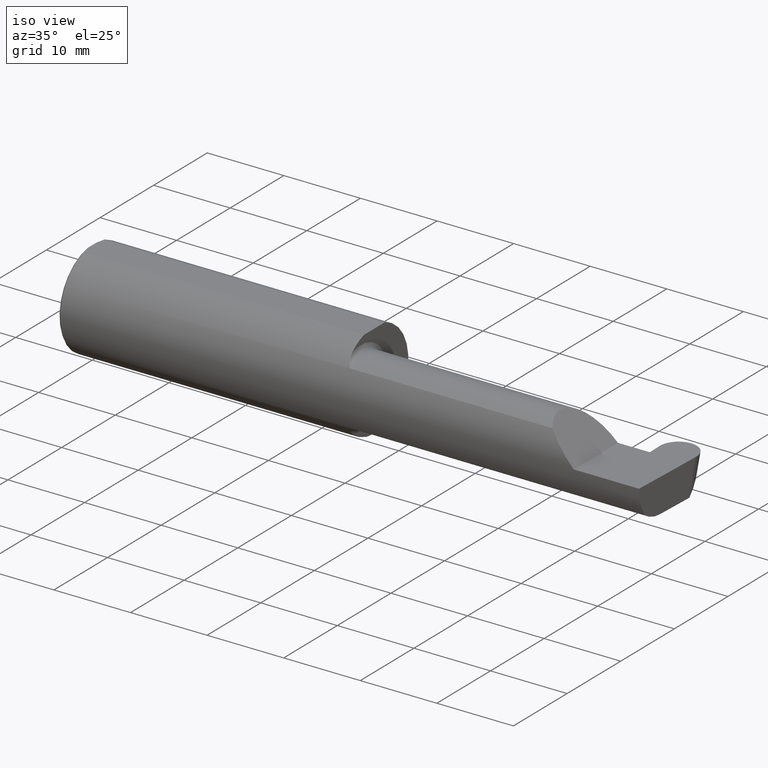
[diagram: clean part render]
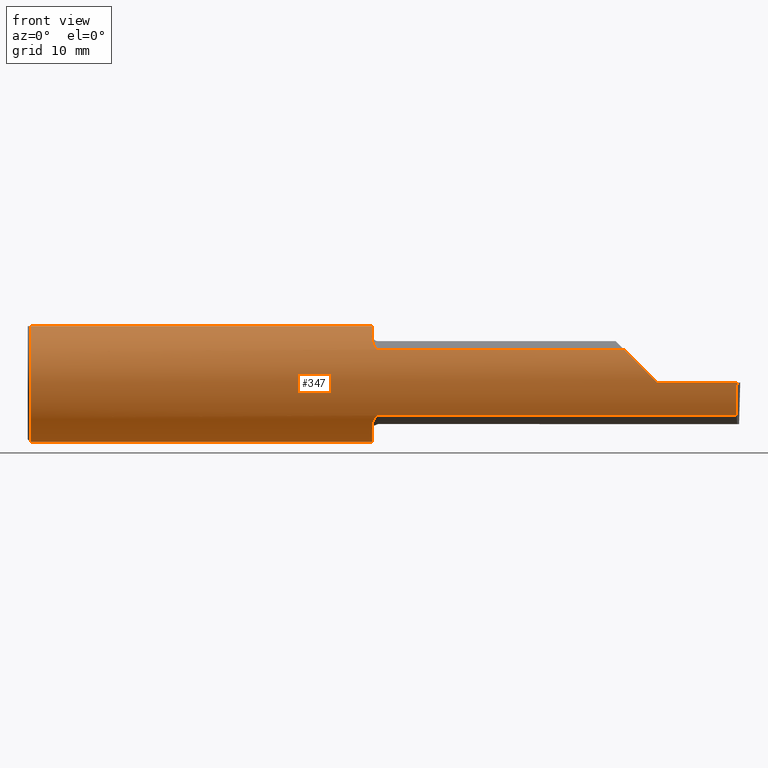
[diagram: tour spotlight — one face highlighted and labeled with its STEP entity id]
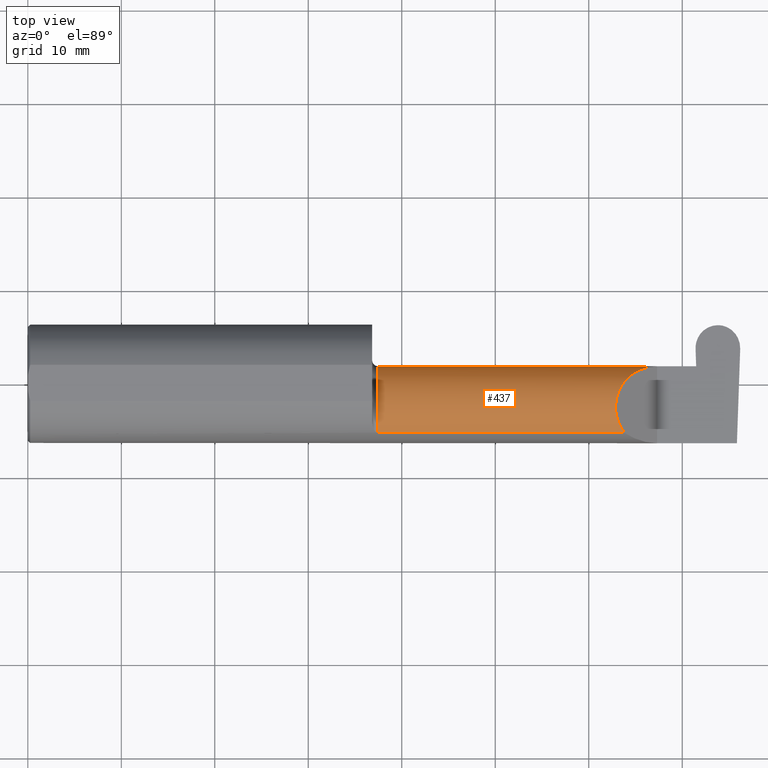
[diagram: tour spotlight — one face highlighted and labeled with its STEP entity id]
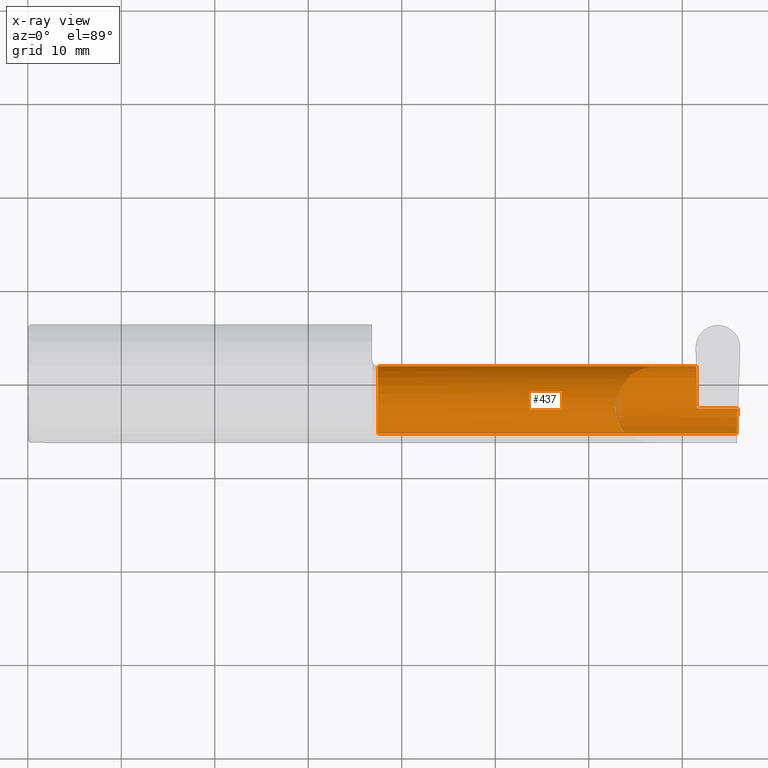
[diagram: x-ray of the same camera — body ghosted, this tour face saturated]
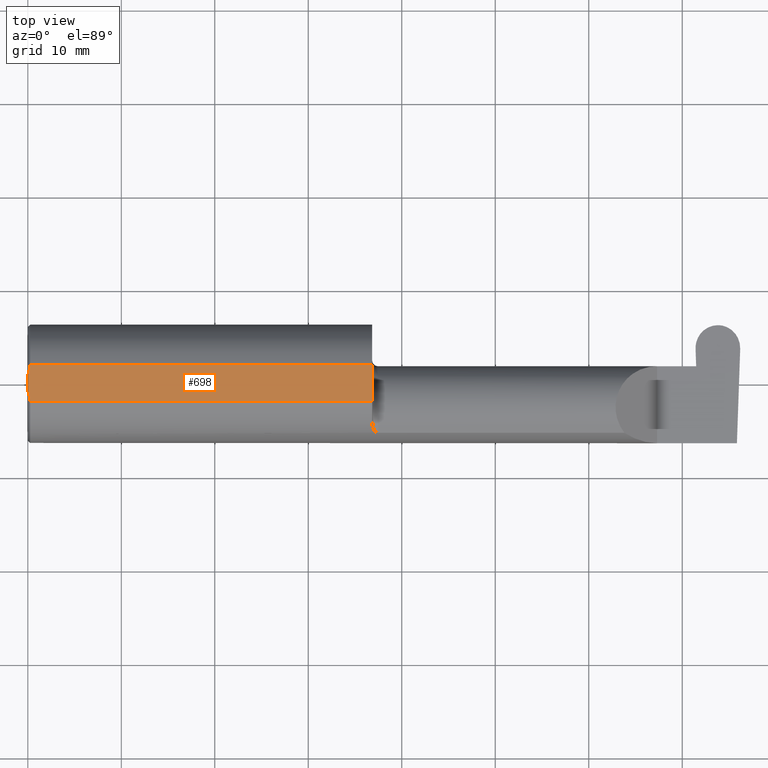
[diagram: tour spotlight — one face highlighted and labeled with its STEP entity id]
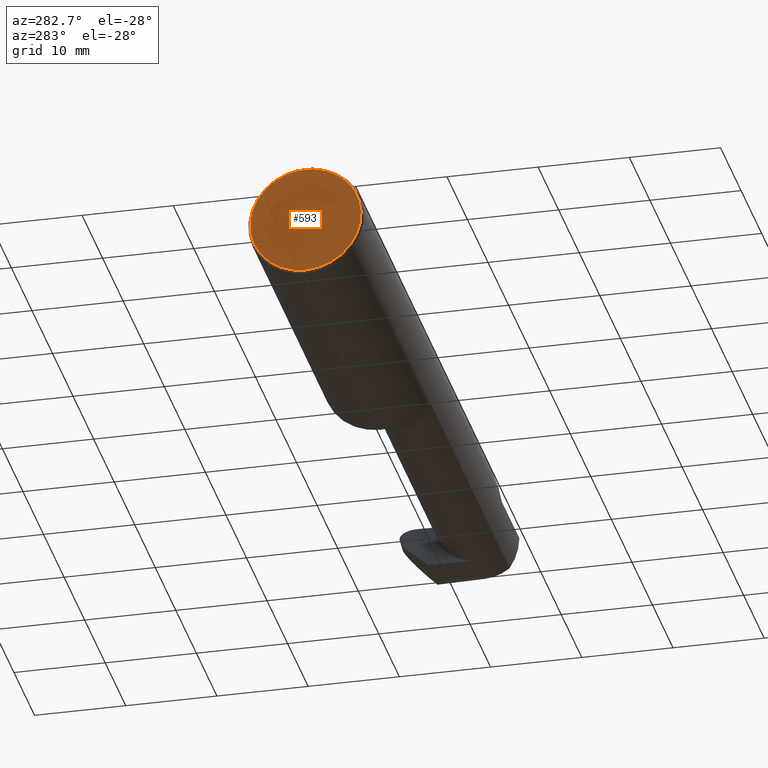
[diagram: tour spotlight — one face highlighted and labeled with its STEP entity id]
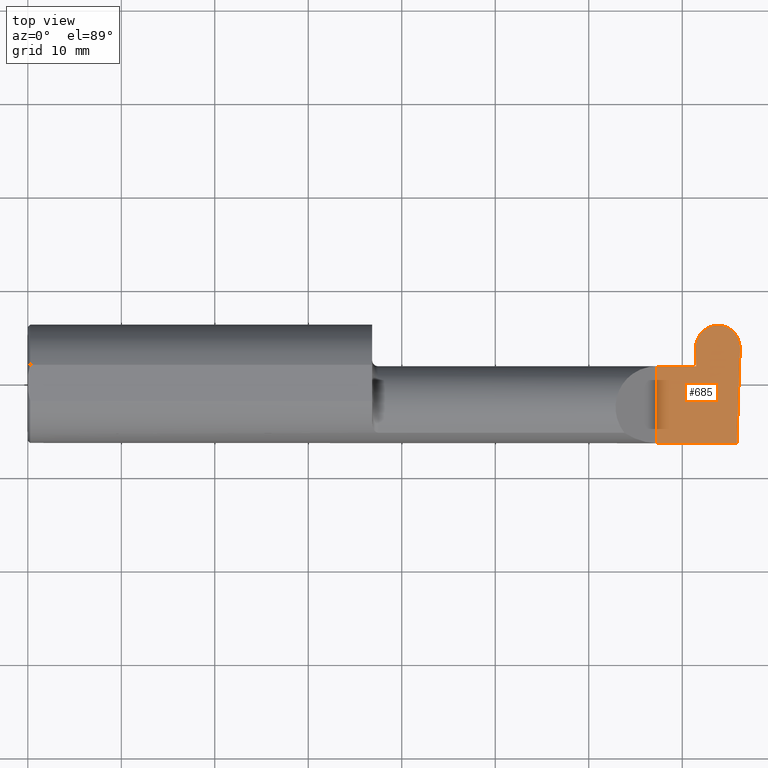
[diagram: tour spotlight — one face highlighted and labeled with its STEP entity id]
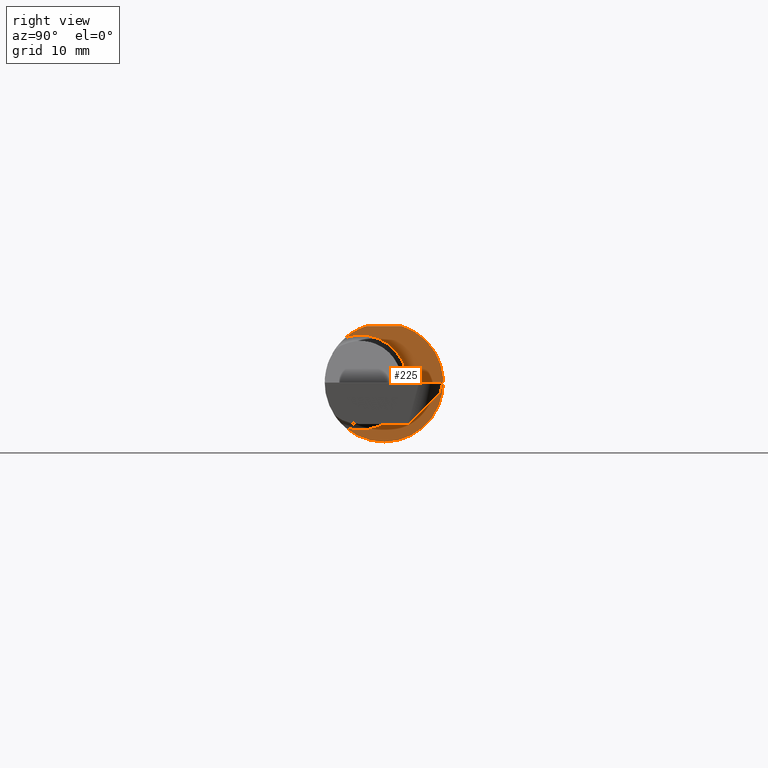
[diagram: tour spotlight — one face highlighted and labeled with its STEP entity id]
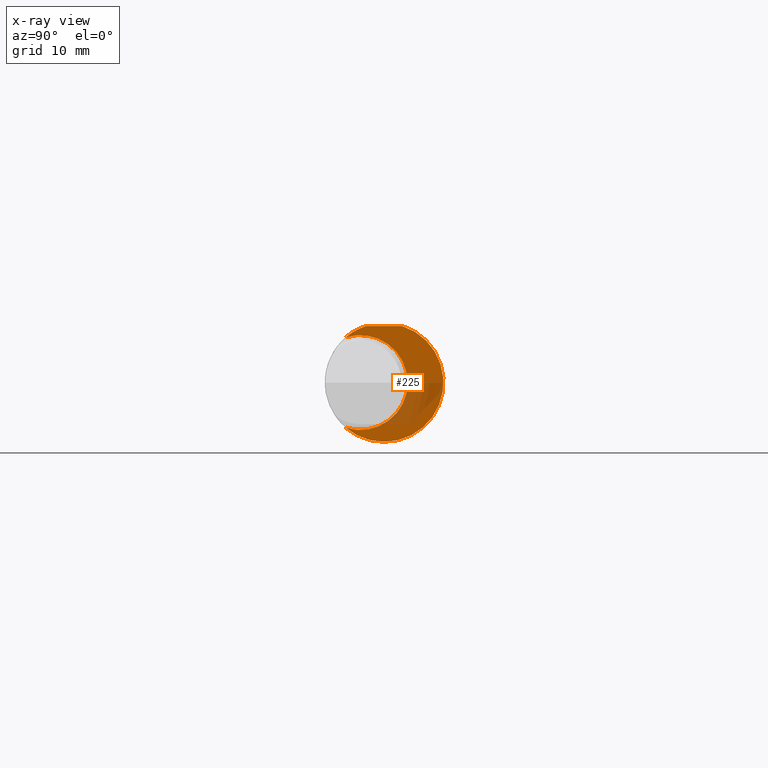
[diagram: x-ray of the same camera — body ghosted, this tour face saturated]
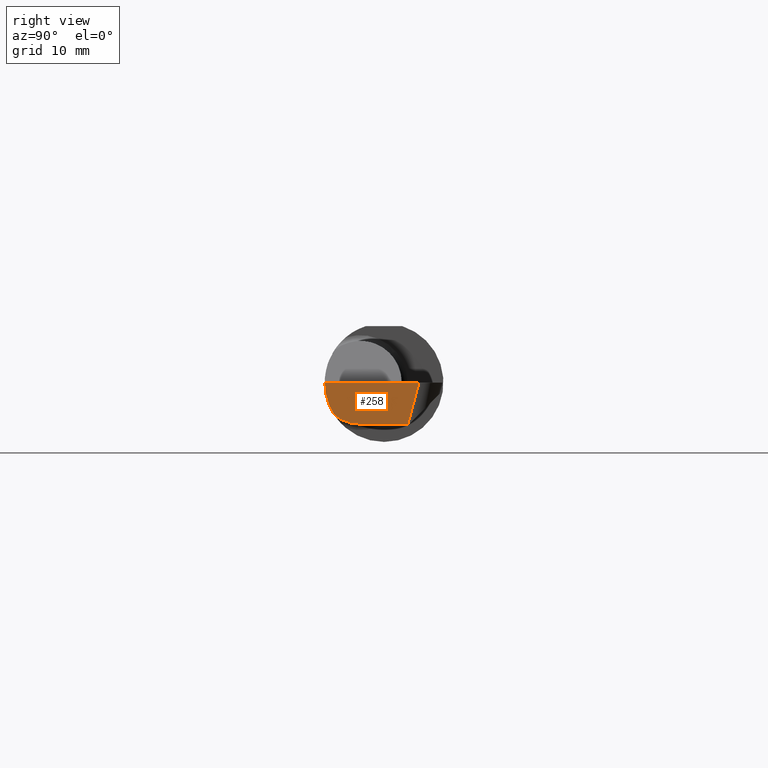
[diagram: tour spotlight — one face highlighted and labeled with its STEP entity id]
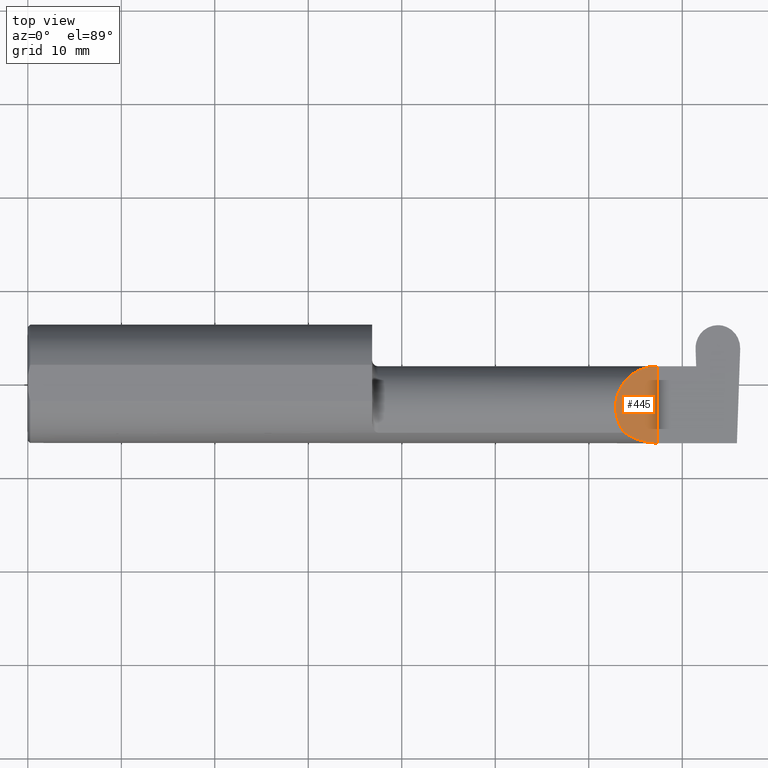
[diagram: tour spotlight — one face highlighted and labeled with its STEP entity id]
A machine part: a face-by-face anatomy tour. The part has 19 B-rep faces; the first image is the clean iso view, then the 8 largest visible faces are spotlighted one at a time (largest first), each with its STEP entity span.

Face 1 — front view, entity #347. In plain terms, the highlighted cylindrical surface (partial cylindrical patch) has radius 6.3462 mm, axis along (-1, -0, -0).
Definition (entity closure, byte-faithful):
#13 = EDGE_CURVE ( 'NONE', #337, #290, #396, .T. ) ;
#19 = CARTESIAN_POINT ( 'NONE',  ( 1.450000000000000622, -0.1665641037263009827, 0.1863429692936361681 ) ) ;
#20 = DIRECTION ( 'NONE',  ( 1.000000000000000000, 6.269458327436218646E-17, 0.000000000000000000 ) ) ;
#23 = LINE ( 'NONE', #561, #637 ) ;
#28 = LINE ( 'NONE', #400, #127 ) ;
#29 = ORIENTED_EDGE ( 'NONE', *, *, #581, .T. ) ;
#34 = CARTESIAN_POINT ( 'NONE',  ( 1.456147634408387903, -0.1932733126899460196, -0.1584637047788197695 ) ) ;
#40 = CARTESIAN_POINT ( 'NONE',  ( 1.451385488563270432, -0.1808287530430325862, -0.1728790649396287349 ) ) ;
#52 = CARTESIAN_POINT ( 'NONE',  ( 2.985032866776429650, -0.2080850024789288599, -0.1382955322609668858 ) ) ;
#55 = DIRECTION ( 'NONE',  ( 0.000000000000000000, 1.000000000000000000, 0.000000000000000000 ) ) ;
#67 = CARTESIAN_POINT ( 'NONE',  ( 2.985032866776429650, -0.2080850024789288599, -0.1382955322609668858 ) ) ;
#85 = CARTESIAN_POINT ( 'NONE',  ( 1.450000000000000400, -0.1716188362992555061, -0.1820560320165480750 ) ) ;
#104 = AXIS2_PLACEMENT_3D ( 'NONE', #710, #373, #604 ) ;
#108 = CARTESIAN_POINT ( 'NONE',  ( 2.985989829834099218, -0.2498499999999999888, 0.000000000000000000 ) ) ;
#110 = ORIENTED_EDGE ( 'NONE', *, *, #547, .T. ) ;
#124 = ORIENTED_EDGE ( 'NONE', *, *, #634, .T. ) ;
#127 = VECTOR ( 'NONE', #702, 39.37007874015748143 ) ;
#129 = VERTEX_POINT ( 'NONE', #420 ) ;
#131 = CARTESIAN_POINT ( 'NONE',  ( 0.000000000000000000, 0.000000000000000000, 0.000000000000000000 ) ) ;
#136 = CARTESIAN_POINT ( 'NONE',  ( 1.474999999999999867, -0.2080850024789288599, -0.1382955322609669135 ) ) ;
#141 = AXIS2_PLACEMENT_3D ( 'NONE', #131, #574, #393 ) ;
#147 = CARTESIAN_POINT ( 'NONE',  ( 1.464302603425052363, -0.2041009206016212441, -0.1441313430770041482 ) ) ;
#153 = DIRECTION ( 'NONE',  ( 1.000000000000000000, 6.269458327436218646E-17, 0.000000000000000000 ) ) ;
#166 = CARTESIAN_POINT ( 'NONE',  ( 1.450000000000000178, 0.000000000000000000, 0.000000000000000000 ) ) ;
#173 = CARTESIAN_POINT ( 'NONE',  ( 1.451849548162864600, -0.1805300287242672663, 0.1728462070311780341 ) ) ;
#174 = VECTOR ( 'NONE', #419, 39.37007874015748143 ) ;
#176 = DIRECTION ( 'NONE',  ( 0.000000000000000000, 1.000000000000000000, 0.000000000000000000 ) ) ;
#189 = CARTESIAN_POINT ( 'NONE',  ( 0.000000000000000000, -0.07650098038587520299, 0.2378499999999998671 ) ) ;
#190 = VERTEX_POINT ( 'NONE', #483 ) ;
#193 = CARTESIAN_POINT ( 'NONE',  ( 2.552984868485332015, -0.2355204011147991883, 0.09701513151466749363 ) ) ;
#200 = CARTESIAN_POINT ( 'NONE',  ( 2.650000000000000355, -0.2498499999999999610, 4.286263797015729199E-17 ) ) ;
#208 = CIRCLE ( 'NONE', #693, 0.2498499999999999888 ) ;
#209 = LINE ( 'NONE', #660, #174 ) ;
#211 = ORIENTED_EDGE ( 'NONE', *, *, #563, .F. ) ;
#212 = CARTESIAN_POINT ( 'NONE',  ( 1.450000000000000178, -0.07650098038587527238, 0.2378499999999998671 ) ) ;
#218 = AXIS2_PLACEMENT_3D ( 'NONE', #286, #20, #176 ) ;
#223 = CARTESIAN_POINT ( 'NONE',  ( 1.468876997637615256, -0.2068363917296600352, 0.1401586554522230577 ) ) ;
#226 = ORIENTED_EDGE ( 'NONE', *, *, #310, .F. ) ;
#230 = CARTESIAN_POINT ( 'NONE',  ( 1.458182335268384033, -0.1972192205116130859, 0.1535061413537210651 ) ) ;
#232 = ORIENTED_EDGE ( 'NONE', *, *, #572, .F. ) ;
#233 = B_SPLINE_CURVE_WITH_KNOTS ( 'NONE', 3,
 ( #671, #19, #277, #173, #288, #291, #230, #441, #616, #564, #223, #450, #509, #338 ),
 .UNSPECIFIED., .F., .F.,
 ( 4, 2, 2, 2, 2, 2, 4 ),
 ( 0.0003834465838148149201, 0.0008781406165086589211, 0.001372834649202502814, 0.001867528681896346923, 0.002114875698243273098, 0.002238549206416742907, 0.002362222714590213150 ),
 .UNSPECIFIED. ) ;
#239 = ORIENTED_EDGE ( 'NONE', *, *, #13, .T. ) ;
#242 = DIRECTION ( 'NONE',  ( 1.000000000000000000, 0.000000000000000000, 0.000000000000000000 ) ) ;
#255 = CARTESIAN_POINT ( 'NONE',  ( 1.467611663768900065, -0.2061921161193829566, -0.1411075319999378075 ) ) ;
#277 = CARTESIAN_POINT ( 'NONE',  ( 1.450367168219774294, -0.1713400252854603290, 0.1819601557798505576 ) ) ;
#286 = CARTESIAN_POINT ( 'NONE',  ( 1.450000000000000178, 0.000000000000000000, 0.000000000000000000 ) ) ;
#288 = CARTESIAN_POINT ( 'NONE',  ( 1.452968662030528879, -0.1849684355203377317, 0.1680843977756267815 ) ) ;
#290 = VERTEX_POINT ( 'NONE', #345 ) ;
#291 = CARTESIAN_POINT ( 'NONE',  ( 1.456159563508733878, -0.1933019864360848439, 0.1584298865564832681 ) ) ;
#298 = CARTESIAN_POINT ( 'NONE',  ( 1.458176740666625060, -0.1972027065478072771, -0.1535263573771913914 ) ) ;
#299 = CIRCLE ( 'NONE', #479, 0.2498499999999999888 ) ;
#301 = VERTEX_POINT ( 'NONE', #510 ) ;
#303 = CARTESIAN_POINT ( 'NONE',  ( 2.511704467739032332, -0.2080850024789289432, 0.1382955322609668858 ) ) ;
#309 = CARTESIAN_POINT ( 'NONE',  ( 2.143342309999999973, -0.2080850024789289432, 0.1382955322609668858 ) ) ;
#310 = EDGE_CURVE ( 'NONE', #129, #321, #370, .T. ) ;
#319 = ORIENTED_EDGE ( 'NONE', *, *, #402, .F. ) ;
#321 = VERTEX_POINT ( 'NONE', #569 ) ;
#325 =( BOUNDED_CURVE ( )  B_SPLINE_CURVE ( 3, ( #52, #368, #413, #108 ),
 .UNSPECIFIED., .F., .F. ) 
 B_SPLINE_CURVE_WITH_KNOTS ( ( 4, 4 ),
 ( 6.160376845738953833, 6.746954780470612256 ),
 .UNSPECIFIED. ) 
 CURVE ( )  GEOMETRIC_REPRESENTATION_ITEM ( )  RATIONAL_B_SPLINE_CURVE ( ( 1.000000000000000000, 0.9715321379117538569, 0.9715321379117538569, 1.000000000000000000 ) ) 
 REPRESENTATION_ITEM ( '' )  );
#326 = VERTEX_POINT ( 'NONE', #67 ) ;
#331 = VECTOR ( 'NONE', #697, 39.37007874015748143 ) ;
#337 = VERTEX_POINT ( 'NONE', #447 ) ;
#338 = CARTESIAN_POINT ( 'NONE',  ( 1.474999999999999867, -0.2080850024789289432, 0.1382955322609669135 ) ) ;
#343 = ORIENTED_EDGE ( 'NONE', *, *, #700, .F. ) ;
#345 = CARTESIAN_POINT ( 'NONE',  ( 2.511704467739032332, -0.2080850024789289432, 0.1382955322609668858 ) ) ;
#347 = ADVANCED_FACE ( 'NONE', ( #629 ), #382, .T. ) ;
#362 = CARTESIAN_POINT ( 'NONE',  ( 1.474999999999999867, -0.2080850024789289432, 0.1382955322609669135 ) ) ;
#368 = CARTESIAN_POINT ( 'NONE',  ( 2.984795792828450089, -0.2355204011147991883, -0.09701513151466764628 ) ) ;
#370 = CIRCLE ( 'NONE', #218, 0.2498499999999999888 ) ;
#373 = DIRECTION ( 'NONE',  ( 1.000000000000000000, 0.000000000000000000, 0.000000000000000000 ) ) ;
#382 = CYLINDRICAL_SURFACE ( 'NONE', #141, 0.2498499999999999888 ) ;
#391 = B_SPLINE_CURVE_WITH_KNOTS ( 'NONE', 3,
 ( #136, #587, #403, #459, #255, #147, #462, #298, #34, #40, #85, #635 ),
 .UNSPECIFIED., .F., .F.,
 ( 4, 2, 2, 2, 2, 4 ),
 ( 1.964491429042083594E-07, 0.0001260981470478302361, 0.0002519998449527562925, 0.0005038032407626203855, 0.001007410032382348572, 0.002014623615621810148 ),
 .UNSPECIFIED. ) ;
#393 = DIRECTION ( 'NONE',  ( 0.000000000000000000, 0.000000000000000000, 1.000000000000000000 ) ) ;
#394 = VERTEX_POINT ( 'NONE', #622 ) ;
#396 =( BOUNDED_CURVE ( )  B_SPLINE_CURVE ( 3, ( #200, #474, #193, #303 ),
 .UNSPECIFIED., .F., .F. ) 
 B_SPLINE_CURVE_WITH_KNOTS ( ( 4, 4 ),
 ( 4.712388980384689674, 5.298966915116347209 ),
 .UNSPECIFIED. ) 
 CURVE ( )  GEOMETRIC_REPRESENTATION_ITEM ( )  RATIONAL_B_SPLINE_CURVE ( ( 1.000000000000000000, 0.9715321379117538569, 0.9715321379117538569, 1.000000000000000000 ) ) 
 REPRESENTATION_ITEM ( '' )  );
#400 = CARTESIAN_POINT ( 'NONE',  ( 4.499279347985562423E-32, -0.2498499999999999610, 3.673940397442054938E-16 ) ) ;
#402 = EDGE_CURVE ( 'NONE', #321, #190, #23, .T. ) ;
#403 = CARTESIAN_POINT ( 'NONE',  ( 1.471700027347579320, -0.2077785947292767055, -0.1387580622202826686 ) ) ;
#405 = CIRCLE ( 'NONE', #104, 0.2498499999999999888 ) ;
#413 = CARTESIAN_POINT ( 'NONE',  ( 2.985124127500504265, -0.2498499999999999610, -0.04956584089959700790 ) ) ;
#419 = DIRECTION ( 'NONE',  ( -1.000000000000000000, -6.269458327436218646E-17, -0.000000000000000000 ) ) ;
#420 = CARTESIAN_POINT ( 'NONE',  ( 1.450000000000000178, -0.1616050818046604332, -0.1905487340154980169 ) ) ;
#421 = EDGE_LOOP ( 'NONE', ( #585, #29, #543, #239, #211, #343, #232, #487, #124, #110, #319, #226, #624 ) ) ;
#428 = DIRECTION ( 'NONE',  ( 1.000000000000000000, 6.269458327436218646E-17, 0.000000000000000000 ) ) ;
#441 = CARTESIAN_POINT ( 'NONE',  ( 1.462616400345755574, -0.2024684335577102701, 0.1464246884265638926 ) ) ;
#447 = CARTESIAN_POINT ( 'NONE',  ( 2.650000000000000355, -0.2498499999999999610, 4.286263797015729199E-17 ) ) ;
#450 = CARTESIAN_POINT ( 'NONE',  ( 1.471718393013768278, -0.2077830475237240626, 0.1387513848711937336 ) ) ;
#459 = CARTESIAN_POINT ( 'NONE',  ( 1.468863362722770294, -0.2068301641248768419, -0.1401678546132361369 ) ) ;
#461 = EDGE_CURVE ( 'NONE', #679, #129, #391, .T. ) ;
#462 = CARTESIAN_POINT ( 'NONE',  ( 1.462579853086618975, -0.2024300470081734915, -0.1464774911482685238 ) ) ;
#474 = CARTESIAN_POINT ( 'NONE',  ( 2.600434159100402987, -0.2498499999999999610, 0.04956584089959698708 ) ) ;
#479 = AXIS2_PLACEMENT_3D ( 'NONE', #513, #242, #683 ) ;
#483 = CARTESIAN_POINT ( 'NONE',  ( 0.009999999999999856226, 0.07650098038587520299, 0.2378499999999998671 ) ) ;
#487 = ORIENTED_EDGE ( 'NONE', *, *, #538, .F. ) ;
#509 = CARTESIAN_POINT ( 'NONE',  ( 1.473329956043141875, -0.2080850024798588660, 0.1382955322595675884 ) ) ;
#510 = CARTESIAN_POINT ( 'NONE',  ( 0.009999999999999856226, 0.000000000000000000, -0.2498499999999999888 ) ) ;
#513 = CARTESIAN_POINT ( 'NONE',  ( 0.009999999999999856226, 0.000000000000000000, 0.000000000000000000 ) ) ;
#529 = LINE ( 'NONE', #189, #331 ) ;
#537 = VERTEX_POINT ( 'NONE', #584 ) ;
#538 = EDGE_CURVE ( 'NONE', #394, #687, #529, .T. ) ;
#543 = ORIENTED_EDGE ( 'NONE', *, *, #549, .T. ) ;
#544 = LINE ( 'NONE', #309, #706 ) ;
#547 = EDGE_CURVE ( 'NONE', #301, #190, #299, .T. ) ;
#549 = EDGE_CURVE ( 'NONE', #665, #337, #28, .T. ) ;
#561 = CARTESIAN_POINT ( 'NONE',  ( 0.000000000000000000, 0.07650098038587520299, 0.2378499999999998671 ) ) ;
#563 = EDGE_CURVE ( 'NONE', #662, #290, #544, .T. ) ;
#564 = CARTESIAN_POINT ( 'NONE',  ( 1.467647060162628359, -0.2062109266231180460, 0.1410799729252291967 ) ) ;
#565 = DIRECTION ( 'NONE',  ( -1.000000000000000000, -0.000000000000000000, -0.000000000000000000 ) ) ;
#569 = CARTESIAN_POINT ( 'NONE',  ( 1.450000000000000178, 0.07650098038587520299, 0.2378499999999998671 ) ) ;
#571 = EDGE_CURVE ( 'NONE', #326, #679, #209, .T. ) ;
#572 = EDGE_CURVE ( 'NONE', #687, #537, #208, .T. ) ;
#574 = DIRECTION ( 'NONE',  ( -1.000000000000000000, -0.000000000000000000, -0.000000000000000000 ) ) ;
#581 = EDGE_CURVE ( 'NONE', #326, #665, #325, .T. ) ;
#584 = CARTESIAN_POINT ( 'NONE',  ( 1.450000000000000178, -0.1616050818046604332, 0.1905487340154980169 ) ) ;
#585 = ORIENTED_EDGE ( 'NONE', *, *, #571, .F. ) ;
#587 = CARTESIAN_POINT ( 'NONE',  ( 1.473318040126429640, -0.2080850024789288877, -0.1382955322609669135 ) ) ;
#594 = CARTESIAN_POINT ( 'NONE',  ( 2.985989829834099218, -0.2498499999999999888, 0.000000000000000000 ) ) ;
#604 = DIRECTION ( 'NONE',  ( 0.000000000000000000, 0.000000000000000000, -1.000000000000000000 ) ) ;
#616 = CARTESIAN_POINT ( 'NONE',  ( 1.464343523383978996, -0.2041337200786082218, 0.1440846171672513221 ) ) ;
#622 = CARTESIAN_POINT ( 'NONE',  ( 0.009999999999999856226, -0.07650098038587520299, 0.2378499999999998671 ) ) ;
#624 = ORIENTED_EDGE ( 'NONE', *, *, #461, .F. ) ;
#629 = FACE_OUTER_BOUND ( 'NONE', #421, .T. ) ;
#634 = EDGE_CURVE ( 'NONE', #394, #301, #405, .T. ) ;
#635 = CARTESIAN_POINT ( 'NONE',  ( 1.450000000000000178, -0.1616050818046604332, -0.1905487340154980169 ) ) ;
#637 = VECTOR ( 'NONE', #565, 39.37007874015748143 ) ;
#651 = CARTESIAN_POINT ( 'NONE',  ( 1.474999999999999867, -0.2080850024789288599, -0.1382955322609669135 ) ) ;
#660 = CARTESIAN_POINT ( 'NONE',  ( 2.143342309999999973, -0.2080850024789289432, -0.1382955322609668858 ) ) ;
#662 = VERTEX_POINT ( 'NONE', #362 ) ;
#665 = VERTEX_POINT ( 'NONE', #594 ) ;
#671 = CARTESIAN_POINT ( 'NONE',  ( 1.450000000000000178, -0.1616050818046604332, 0.1905487340154980169 ) ) ;
#679 = VERTEX_POINT ( 'NONE', #651 ) ;
#683 = DIRECTION ( 'NONE',  ( 0.000000000000000000, 0.000000000000000000, -1.000000000000000000 ) ) ;
#687 = VERTEX_POINT ( 'NONE', #212 ) ;
#693 = AXIS2_PLACEMENT_3D ( 'NONE', #166, #428, #55 ) ;
#697 = DIRECTION ( 'NONE',  ( 1.000000000000000000, 0.000000000000000000, 0.000000000000000000 ) ) ;
#700 = EDGE_CURVE ( 'NONE', #537, #662, #233, .T. ) ;
#702 = DIRECTION ( 'NONE',  ( -1.000000000000000000, -0.000000000000000000, -0.000000000000000000 ) ) ;
#706 = VECTOR ( 'NONE', #153, 39.37007874015748143 ) ;
#710 = CARTESIAN_POINT ( 'NONE',  ( 0.009999999999999856226, 0.000000000000000000, 0.000000000000000000 ) ) ;

Face 2 — top view, entity #437. An x-ray twin of the same camera follows (body ghosted, this face saturated) — the face is partly hidden behind the body. In plain terms, the highlighted cylindrical surface (partial cylindrical patch) has radius 4.445 mm, axis along (-1, -0, -0).
Definition (entity closure, byte-faithful):
#3 = ORIENTED_EDGE ( 'NONE', *, *, #58, .F. ) ;
#7 = VECTOR ( 'NONE', #619, 39.37007874015748143 ) ;
#17 = CARTESIAN_POINT ( 'NONE',  ( 2.988136526189751230, -0.1008499999999999674, -0.1750000000000000722 ) ) ;
#27 = VERTEX_POINT ( 'NONE', #83 ) ;
#32 = CARTESIAN_POINT ( 'NONE',  ( 2.803303632637951459, 0.07411446490944693932, -0.002035803974317284496 ) ) ;
#38 = AXIS2_PLACEMENT_3D ( 'NONE', #246, #699, #639 ) ;
#44 = CARTESIAN_POINT ( 'NONE',  ( 2.482823929317965028, 0.07414999999999997982, 0.1671760706820338838 ) ) ;
#58 = EDGE_CURVE ( 'NONE', #27, #86, #701, .T. ) ;
#67 = CARTESIAN_POINT ( 'NONE',  ( 2.985032866776429650, -0.2080850024789288599, -0.1382955322609668858 ) ) ;
#68 = EDGE_CURVE ( 'NONE', #618, #217, #168, .T. ) ;
#71 = CARTESIAN_POINT ( 'NONE',  ( 2.986768025497131163, -0.1400387324517230192, -0.1750000000000001277 ) ) ;
#75 = CARTESIAN_POINT ( 'NONE',  ( 2.985694921565462234, -0.1771157075472507281, -0.1623092683844332973 ) ) ;
#78 = EDGE_CURVE ( 'NONE', #662, #679, #103, .T. ) ;
#79 = CARTESIAN_POINT ( 'NONE',  ( 2.650000000000000355, 0.07414999999999999369, 1.898202538678394994E-16 ) ) ;
#83 = CARTESIAN_POINT ( 'NONE',  ( 2.817597862438286249, -0.1008500000000000368, -0.1750000000000000444 ) ) ;
#86 = VERTEX_POINT ( 'NONE', #90 ) ;
#90 = CARTESIAN_POINT ( 'NONE',  ( 2.814490853840988738, 0.07404339472834124691, -0.006107411922953761250 ) ) ;
#94 = DIRECTION ( 'NONE',  ( -1.000000000000000000, -6.269458327436218646E-17, -0.000000000000000000 ) ) ;
#103 = CIRCLE ( 'NONE', #38, 0.1750000000000000167 ) ;
#105 = CARTESIAN_POINT ( 'NONE',  ( 2.803232562456845933, 0.07404339472834127467, -0.006107411922951849585 ) ) ;
#123 = CARTESIAN_POINT ( 'NONE',  ( 2.985032866776429650, -0.2080850024789288599, -0.1382955322609668858 ) ) ;
#153 = DIRECTION ( 'NONE',  ( 1.000000000000000000, 6.269458327436218646E-17, 0.000000000000000000 ) ) ;
#157 = ORIENTED_EDGE ( 'NONE', *, *, #571, .T. ) ;
#165 = ORIENTED_EDGE ( 'NONE', *, *, #78, .F. ) ;
#168 = B_SPLINE_CURVE_WITH_KNOTS ( 'NONE', 3,
 ( #406, #644, #32, #353 ),
 .UNSPECIFIED., .F., .F.,
 ( 4, 4 ),
 ( 0.000000000000000000, 1.000000000000000000 ),
 .UNSPECIFIED. ) ;
#174 = VECTOR ( 'NONE', #419, 39.37007874015748143 ) ;
#177 = EDGE_CURVE ( 'NONE', #86, #618, #708, .T. ) ;
#199 = FACE_OUTER_BOUND ( 'NONE', #508, .T. ) ;
#209 = LINE ( 'NONE', #660, #174 ) ;
#217 = VERTEX_POINT ( 'NONE', #661 ) ;
#246 = CARTESIAN_POINT ( 'NONE',  ( 1.474999999999999867, -0.1008500000000001062, 0.000000000000000000 ) ) ;
#260 = CARTESIAN_POINT ( 'NONE',  ( 2.511704467739032332, -0.2080850024789289432, 0.1382955322609668858 ) ) ;
#279 =( BOUNDED_CURVE ( )  B_SPLINE_CURVE ( 3, ( #123, #75, #71, #296 ),
 .UNSPECIFIED., .F., .F. ) 
 B_SPLINE_CURVE_WITH_KNOTS ( ( 4, 4 ),
 ( 0.4474640105399675938, 1.107026853503871866 ),
 .UNSPECIFIED. ) 
 CURVE ( )  GEOMETRIC_REPRESENTATION_ITEM ( )  RATIONAL_B_SPLINE_CURVE ( ( 1.000000000000000000, 0.9640754331822832812, 0.9640754331822832812, 1.000000000000000000 ) ) 
 REPRESENTATION_ITEM ( '' )  );
#287 = ORIENTED_EDGE ( 'NONE', *, *, #563, .T. ) ;
#289 = LINE ( 'NONE', #451, #504 ) ;
#290 = VERTEX_POINT ( 'NONE', #345 ) ;
#296 = CARTESIAN_POINT ( 'NONE',  ( 2.988136526189751230, -0.1008499999999999674, -0.1750000000000000722 ) ) ;
#309 = CARTESIAN_POINT ( 'NONE',  ( 2.143342309999999973, -0.2080850024789289432, 0.1382955322609668858 ) ) ;
#326 = VERTEX_POINT ( 'NONE', #67 ) ;
#345 = CARTESIAN_POINT ( 'NONE',  ( 2.511704467739032332, -0.2080850024789289432, 0.1382955322609668858 ) ) ;
#353 = CARTESIAN_POINT ( 'NONE',  ( 2.803339167728504666, 0.07414999999999977165, 0.000000000000000000 ) ) ;
#362 = CARTESIAN_POINT ( 'NONE',  ( 1.474999999999999867, -0.2080850024789289432, 0.1382955322609669135 ) ) ;
#379 = EDGE_CURVE ( 'NONE', #326, #387, #279, .T. ) ;
#383 = ORIENTED_EDGE ( 'NONE', *, *, #177, .F. ) ;
#387 = VERTEX_POINT ( 'NONE', #17 ) ;
#401 = ORIENTED_EDGE ( 'NONE', *, *, #410, .T. ) ;
#404 = CARTESIAN_POINT ( 'NONE',  ( 1.450000000000000178, -0.1008500000000001062, 0.000000000000000000 ) ) ;
#406 = CARTESIAN_POINT ( 'NONE',  ( 2.803232562456845933, 0.07404339472834127467, -0.006107411922951849585 ) ) ;
#410 = EDGE_CURVE ( 'NONE', #455, #217, #289, .T. ) ;
#419 = DIRECTION ( 'NONE',  ( -1.000000000000000000, -6.269458327436218646E-17, -0.000000000000000000 ) ) ;
#437 = ADVANCED_FACE ( 'NONE', ( #199 ), #643, .T. ) ;
#451 = CARTESIAN_POINT ( 'NONE',  ( 1.450000000000000178, 0.07414999999999991043, 1.898202538678394994E-16 ) ) ;
#455 = VERTEX_POINT ( 'NONE', #79 ) ;
#473 =( BOUNDED_CURVE ( )  B_SPLINE_CURVE ( 3, ( #260, #534, #44, #477 ),
 .UNSPECIFIED., .F., .F. ) 
 B_SPLINE_CURVE_WITH_KNOTS ( ( 4, 4 ),
 ( 5.623622464215681127, 7.853981633974482790 ),
 .UNSPECIFIED. ) 
 CURVE ( )  GEOMETRIC_REPRESENTATION_ITEM ( )  RATIONAL_B_SPLINE_CURVE ( ( 1.000000000000000000, 0.6266774836123996106, 0.6266774836123996106, 1.000000000000000000 ) ) 
 REPRESENTATION_ITEM ( '' )  );
#477 = CARTESIAN_POINT ( 'NONE',  ( 2.650000000000000355, 0.07414999999999999369, 1.898202538678394994E-16 ) ) ;
#478 = CARTESIAN_POINT ( 'NONE',  ( 1.450000000000000178, 0.07404339472834139957, -0.006107411922946026986 ) ) ;
#501 = CARTESIAN_POINT ( 'NONE',  ( 3.402190948718818664, -0.1008499999999999674, -0.1750000000000000722 ) ) ;
#504 = VECTOR ( 'NONE', #674, 39.37007874015748143 ) ;
#508 = EDGE_LOOP ( 'NONE', ( #157, #165, #287, #511, #401, #525, #383, #3, #603, #607 ) ) ;
#511 = ORIENTED_EDGE ( 'NONE', *, *, #666, .T. ) ;
#518 = CARTESIAN_POINT ( 'NONE',  ( 2.816292363343102068, 0.07056399972053259417, -0.1057442486376092700 ) ) ;
#525 = ORIENTED_EDGE ( 'NONE', *, *, #68, .F. ) ;
#534 = CARTESIAN_POINT ( 'NONE',  ( 2.409263745716142768, -0.07597241004310682777, 0.2407362542838554220 ) ) ;
#544 = LINE ( 'NONE', #309, #706 ) ;
#563 = EDGE_CURVE ( 'NONE', #662, #290, #544, .T. ) ;
#568 = LINE ( 'NONE', #501, #7 ) ;
#571 = EDGE_CURVE ( 'NONE', #326, #679, #209, .T. ) ;
#582 = CARTESIAN_POINT ( 'NONE',  ( 2.817597862438286249, -0.1008500000000000368, -0.1750000000000000444 ) ) ;
#588 = CARTESIAN_POINT ( 'NONE',  ( 2.814490853840988738, 0.07404339472834124691, -0.006107411922953761250 ) ) ;
#597 = DIRECTION ( 'NONE',  ( -1.000000000000000000, -6.269458327436218646E-17, -0.000000000000000000 ) ) ;
#603 = ORIENTED_EDGE ( 'NONE', *, *, #689, .F. ) ;
#607 = ORIENTED_EDGE ( 'NONE', *, *, #379, .F. ) ;
#613 = VECTOR ( 'NONE', #597, 39.37007874015748143 ) ;
#618 = VERTEX_POINT ( 'NONE', #105 ) ;
#619 = DIRECTION ( 'NONE',  ( -1.000000000000000000, -0.000000000000000000, -0.000000000000000000 ) ) ;
#639 = DIRECTION ( 'NONE',  ( 0.000000000000000000, -1.000000000000000000, 0.000000000000000000 ) ) ;
#641 = DIRECTION ( 'NONE',  ( 0.000000000000000000, -1.000000000000000000, 0.000000000000000000 ) ) ;
#643 = CYLINDRICAL_SURFACE ( 'NONE', #669, 0.1750000000000000444 ) ;
#644 = CARTESIAN_POINT ( 'NONE',  ( 2.803268097547399140, 0.07407892981889410700, -0.004071607948634568992 ) ) ;
#651 = CARTESIAN_POINT ( 'NONE',  ( 1.474999999999999867, -0.2080850024789288599, -0.1382955322609669135 ) ) ;
#660 = CARTESIAN_POINT ( 'NONE',  ( 2.143342309999999973, -0.2080850024789289432, -0.1382955322609668858 ) ) ;
#661 = CARTESIAN_POINT ( 'NONE',  ( 2.803339167728504666, 0.07414999999999977165, 0.000000000000000000 ) ) ;
#662 = VERTEX_POINT ( 'NONE', #362 ) ;
#666 = EDGE_CURVE ( 'NONE', #290, #455, #473, .T. ) ;
#669 = AXIS2_PLACEMENT_3D ( 'NONE', #404, #94, #641 ) ;
#674 = DIRECTION ( 'NONE',  ( 1.000000000000000000, 6.269458327436218646E-17, 0.000000000000000000 ) ) ;
#679 = VERTEX_POINT ( 'NONE', #651 ) ;
#689 = EDGE_CURVE ( 'NONE', #387, #27, #568, .T. ) ;
#691 = CARTESIAN_POINT ( 'NONE',  ( 2.817566416972957732, -0.001152430219572305077, -0.1750000000000000722 ) ) ;
#699 = DIRECTION ( 'NONE',  ( -1.000000000000000000, -6.269458327436218646E-17, -0.000000000000000000 ) ) ;
#701 =( BOUNDED_CURVE ( )  B_SPLINE_CURVE ( 3, ( #582, #691, #518, #588 ),
 .UNSPECIFIED., .F., .F. ) 
 B_SPLINE_CURVE_WITH_KNOTS ( ( 4, 4 ),
 ( 3.159045946109732661, 4.694935687864650653 ),
 .UNSPECIFIED. ) 
 CURVE ( )  GEOMETRIC_REPRESENTATION_ITEM ( )  RATIONAL_B_SPLINE_CURVE ( ( 1.000000000000000000, 0.8128932002257887035, 0.8128932002257887035, 1.000000000000000000 ) ) 
 REPRESENTATION_ITEM ( '' )  );
#706 = VECTOR ( 'NONE', #153, 39.37007874015748143 ) ;
#708 = LINE ( 'NONE', #478, #613 ) ;

Face 3 — top view, entity #698. In plain terms, the highlighted planar face has unit normal (0, 0, 1).
Definition (entity closure, byte-faithful):
#1 = CARTESIAN_POINT ( 'NONE',  ( 0.005466242398876384675, 0.06169385855649840017, 0.2378499999999998671 ) ) ;
#15 = DIRECTION ( 'NONE',  ( 1.000000000000000000, 0.000000000000000000, -0.000000000000000000 ) ) ;
#23 = LINE ( 'NONE', #561, #637 ) ;
#26 = CARTESIAN_POINT ( 'NONE',  ( 1.450000000000000178, 0.2498499999999997390, 0.2378499999999998671 ) ) ;
#49 = CARTESIAN_POINT ( 'NONE',  ( 0.009999999999999856226, -0.07650098038587520299, 0.2378499999999998671 ) ) ;
#64 = PLANE ( 'NONE',  #493 ) ;
#119 = ORIENTED_EDGE ( 'NONE', *, *, #557, .F. ) ;
#120 = CARTESIAN_POINT ( 'NONE',  ( 3.501298404146671484, 0.2498499999999998500, 0.2378499999999998671 ) ) ;
#158 = CARTESIAN_POINT ( 'NONE',  ( 0.009999999999999856226, 0.07650098038587520299, 0.2378499999999998671 ) ) ;
#162 = CARTESIAN_POINT ( 'NONE',  ( 0.001983148254845701515, -0.04629825796642599717, 0.2378499999999998671 ) ) ;
#169 = ORIENTED_EDGE ( 'NONE', *, *, #284, .T. ) ;
#183 = DIRECTION ( 'NONE',  ( -6.269458327436218646E-17, 1.000000000000000000, 0.000000000000000000 ) ) ;
#189 = CARTESIAN_POINT ( 'NONE',  ( 0.000000000000000000, -0.07650098038587520299, 0.2378499999999998671 ) ) ;
#190 = VERTEX_POINT ( 'NONE', #483 ) ;
#212 = CARTESIAN_POINT ( 'NONE',  ( 1.450000000000000178, -0.07650098038587527238, 0.2378499999999998671 ) ) ;
#220 = CARTESIAN_POINT ( 'NONE',  ( 0.002005502345409059580, 0.04647171987093979412, 0.2378499999999998671 ) ) ;
#234 = CARTESIAN_POINT ( 'NONE',  ( 0.000000000000000000, -0.03090954545120560767, 0.2378499999999998671 ) ) ;
#245 = CARTESIAN_POINT ( 'NONE',  ( 0.000000000000000000, 0.03090954545120574992, 0.2378499999999998671 ) ) ;
#271 = ORIENTED_EDGE ( 'NONE', *, *, #402, .T. ) ;
#272 = CARTESIAN_POINT ( 'NONE',  ( 0.005459900170181723050, -0.06167314502012866823, 0.2378499999999998671 ) ) ;
#281 = DIRECTION ( 'NONE',  ( 0.000000000000000000, 0.000000000000000000, 1.000000000000000000 ) ) ;
#284 = EDGE_CURVE ( 'NONE', #687, #321, #558, .T. ) ;
#321 = VERTEX_POINT ( 'NONE', #569 ) ;
#329 = VERTEX_POINT ( 'NONE', #234 ) ;
#331 = VECTOR ( 'NONE', #697, 39.37007874015748143 ) ;
#355 = CARTESIAN_POINT ( 'NONE',  ( 0.000000000000000000, 0.2498499999999998500, 0.2378499999999998671 ) ) ;
#390 = ORIENTED_EDGE ( 'NONE', *, *, #515, .F. ) ;
#394 = VERTEX_POINT ( 'NONE', #622 ) ;
#402 = EDGE_CURVE ( 'NONE', #321, #190, #23, .T. ) ;
#411 = DIRECTION ( 'NONE',  ( -0.000000000000000000, 1.000000000000000000, -0.000000000000000000 ) ) ;
#422 = B_SPLINE_CURVE_WITH_KNOTS ( 'NONE', 3,
 ( #49, #272, #162, #489 ),
 .UNSPECIFIED., .F., .F.,
 ( 4, 4 ),
 ( 0.01317593029100230795, 0.01435802289191462008 ),
 .UNSPECIFIED. ) ;
#426 = ORIENTED_EDGE ( 'NONE', *, *, #538, .T. ) ;
#432 = CARTESIAN_POINT ( 'NONE',  ( 0.000000000000000000, 0.03090954545120574992, 0.2378499999999998671 ) ) ;
#472 = LINE ( 'NONE', #355, #579 ) ;
#481 = VERTEX_POINT ( 'NONE', #245 ) ;
#483 = CARTESIAN_POINT ( 'NONE',  ( 0.009999999999999856226, 0.07650098038587520299, 0.2378499999999998671 ) ) ;
#489 = CARTESIAN_POINT ( 'NONE',  ( 0.000000000000000000, -0.03090954545120560767, 0.2378499999999998671 ) ) ;
#493 = AXIS2_PLACEMENT_3D ( 'NONE', #120, #281, #15 ) ;
#498 = FACE_OUTER_BOUND ( 'NONE', #630, .T. ) ;
#515 = EDGE_CURVE ( 'NONE', #329, #481, #472, .T. ) ;
#529 = LINE ( 'NONE', #189, #331 ) ;
#538 = EDGE_CURVE ( 'NONE', #394, #687, #529, .T. ) ;
#557 = EDGE_CURVE ( 'NONE', #481, #190, #598, .T. ) ;
#558 = LINE ( 'NONE', #26, #625 ) ;
#561 = CARTESIAN_POINT ( 'NONE',  ( 0.000000000000000000, 0.07650098038587520299, 0.2378499999999998671 ) ) ;
#565 = DIRECTION ( 'NONE',  ( -1.000000000000000000, -0.000000000000000000, -0.000000000000000000 ) ) ;
#569 = CARTESIAN_POINT ( 'NONE',  ( 1.450000000000000178, 0.07650098038587520299, 0.2378499999999998671 ) ) ;
#579 = VECTOR ( 'NONE', #411, 39.37007874015748143 ) ;
#598 = B_SPLINE_CURVE_WITH_KNOTS ( 'NONE', 3,
 ( #432, #220, #1, #158 ),
 .UNSPECIFIED., .F., .F.,
 ( 4, 4 ),
 ( 0.01593449416844770414, 0.01712021724825603733 ),
 .UNSPECIFIED. ) ;
#622 = CARTESIAN_POINT ( 'NONE',  ( 0.009999999999999856226, -0.07650098038587520299, 0.2378499999999998671 ) ) ;
#625 = VECTOR ( 'NONE', #183, 39.37007874015748143 ) ;
#627 = EDGE_CURVE ( 'NONE', #394, #329, #422, .T. ) ;
#630 = EDGE_LOOP ( 'NONE', ( #426, #169, #271, #119, #390, #670 ) ) ;
#637 = VECTOR ( 'NONE', #565, 39.37007874015748143 ) ;
#670 = ORIENTED_EDGE ( 'NONE', *, *, #627, .F. ) ;
#687 = VERTEX_POINT ( 'NONE', #212 ) ;
#697 = DIRECTION ( 'NONE',  ( 1.000000000000000000, 0.000000000000000000, 0.000000000000000000 ) ) ;
#698 = ADVANCED_FACE ( 'NONE', ( #498 ), #64, .T. ) ;

Face 4 — auxiliary view, entity #593. In plain terms, the highlighted planar face has unit normal (1, 0, 0).
Definition (entity closure, byte-faithful):
#30 = AXIS2_PLACEMENT_3D ( 'NONE', #548, #215, #600 ) ;
#72 = EDGE_LOOP ( 'NONE', ( #556, #267, #675 ) ) ;
#82 = CARTESIAN_POINT ( 'NONE',  ( 0.000000000000000000, 0.000000000000000000, 0.000000000000000000 ) ) ;
#122 = VERTEX_POINT ( 'NONE', #270 ) ;
#152 = AXIS2_PLACEMENT_3D ( 'NONE', #82, #360, #249 ) ;
#163 = EDGE_CURVE ( 'NONE', #481, #122, #668, .T. ) ;
#215 = DIRECTION ( 'NONE',  ( 1.000000000000000000, 0.000000000000000000, 0.000000000000000000 ) ) ;
#234 = CARTESIAN_POINT ( 'NONE',  ( 0.000000000000000000, -0.03090954545120560767, 0.2378499999999998671 ) ) ;
#245 = CARTESIAN_POINT ( 'NONE',  ( 0.000000000000000000, 0.03090954545120574992, 0.2378499999999998671 ) ) ;
#249 = DIRECTION ( 'NONE',  ( 0.000000000000000000, 0.000000000000000000, -1.000000000000000000 ) ) ;
#265 = FACE_OUTER_BOUND ( 'NONE', #72, .T. ) ;
#267 = ORIENTED_EDGE ( 'NONE', *, *, #163, .T. ) ;
#269 = PLANE ( 'NONE',  #30 ) ;
#270 = CARTESIAN_POINT ( 'NONE',  ( 0.000000000000000000, 0.000000000000000000, -0.2398500000000001742 ) ) ;
#329 = VERTEX_POINT ( 'NONE', #234 ) ;
#355 = CARTESIAN_POINT ( 'NONE',  ( 0.000000000000000000, 0.2498499999999998500, 0.2378499999999998671 ) ) ;
#360 = DIRECTION ( 'NONE',  ( -1.000000000000000000, -0.000000000000000000, -0.000000000000000000 ) ) ;
#363 = DIRECTION ( 'NONE',  ( 0.000000000000000000, 0.000000000000000000, -1.000000000000000000 ) ) ;
#411 = DIRECTION ( 'NONE',  ( -0.000000000000000000, 1.000000000000000000, -0.000000000000000000 ) ) ;
#414 = AXIS2_PLACEMENT_3D ( 'NONE', #434, #486, #363 ) ;
#434 = CARTESIAN_POINT ( 'NONE',  ( 0.000000000000000000, 0.000000000000000000, 0.000000000000000000 ) ) ;
#472 = LINE ( 'NONE', #355, #579 ) ;
#481 = VERTEX_POINT ( 'NONE', #245 ) ;
#486 = DIRECTION ( 'NONE',  ( -1.000000000000000000, -0.000000000000000000, -0.000000000000000000 ) ) ;
#515 = EDGE_CURVE ( 'NONE', #329, #481, #472, .T. ) ;
#535 = EDGE_CURVE ( 'NONE', #122, #329, #567, .T. ) ;
#548 = CARTESIAN_POINT ( 'NONE',  ( 0.000000000000000000, 0.000000000000000000, 0.000000000000000000 ) ) ;
#556 = ORIENTED_EDGE ( 'NONE', *, *, #515, .T. ) ;
#567 = CIRCLE ( 'NONE', #152, 0.2398500000000001742 ) ;
#579 = VECTOR ( 'NONE', #411, 39.37007874015748143 ) ;
#593 = ADVANCED_FACE ( 'NONE', ( #265 ), #269, .F. ) ;
#600 = DIRECTION ( 'NONE',  ( 0.000000000000000000, 0.000000000000000000, -1.000000000000000000 ) ) ;
#668 = CIRCLE ( 'NONE', #414, 0.2398500000000001742 ) ;
#675 = ORIENTED_EDGE ( 'NONE', *, *, #535, .T. ) ;

Face 5 — top view, entity #685. In plain terms, the highlighted planar face has unit normal (-0, 0, -1).
Definition (entity closure, byte-faithful):
#6 = CARTESIAN_POINT ( 'NONE',  ( -0.002039370078740339320, 0.2471499999999999808, 0.000000000000000000 ) ) ;
#16 =( BOUNDED_CURVE ( )  B_SPLINE_CURVE ( 3, ( #517, #149, #686, #36 ),
 .UNSPECIFIED., .F., .F. ) 
 B_SPLINE_CURVE_WITH_KNOTS ( ( 4, 4 ),
 ( 3.045231736429744540, 4.645220385064936508 ),
 .UNSPECIFIED. ) 
 CURVE ( )  GEOMETRIC_REPRESENTATION_ITEM ( )  RATIONAL_B_SPLINE_CURVE ( ( 1.000000000000000000, 0.7978071872141907495, 0.7978071872141907495, 1.000000000000000000 ) ) 
 REPRESENTATION_ITEM ( '' )  );
#28 = LINE ( 'NONE', #400, #127 ) ;
#31 = CARTESIAN_POINT ( 'NONE',  ( 2.962893989228886138, 0.2471500000000001196, -6.982753567311735255E-18 ) ) ;
#36 = CARTESIAN_POINT ( 'NONE',  ( 2.811836707554793424, 0.1469935636673020407, 0.000000000000000000 ) ) ;
#47 = ORIENTED_EDGE ( 'NONE', *, *, #113, .F. ) ;
#51 = ORIENTED_EDGE ( 'NONE', *, *, #466, .T. ) ;
#66 = VERTEX_POINT ( 'NONE', #412 ) ;
#70 = CARTESIAN_POINT ( 'NONE',  ( 2.999847912445206877, 0.1469935636673019019, 0.000000000000000000 ) ) ;
#79 = CARTESIAN_POINT ( 'NONE',  ( 2.650000000000000355, 0.07414999999999999369, 1.898202538678394994E-16 ) ) ;
#80 = ORIENTED_EDGE ( 'NONE', *, *, #549, .F. ) ;
#89 = CARTESIAN_POINT ( 'NONE',  ( 3.001884138526210499, 0.2053034494642216323, -1.175766972083629841E-17 ) ) ;
#96 = EDGE_CURVE ( 'NONE', #696, #665, #636, .T. ) ;
#99 = DIRECTION ( 'NONE',  ( -1.224646799147351975E-16, 0.000000000000000000, -1.000000000000000000 ) ) ;
#113 = EDGE_CURVE ( 'NONE', #217, #66, #210, .T. ) ;
#127 = VECTOR ( 'NONE', #702, 39.37007874015748143 ) ;
#128 = AXIS2_PLACEMENT_3D ( 'NONE', #596, #99, #316 ) ;
#132 = ORIENTED_EDGE ( 'NONE', *, *, #645, .F. ) ;
#145 = CARTESIAN_POINT ( 'NONE',  ( 2.999942641679308242, 0.1497062540083303195, 0.000000000000000000 ) ) ;
#149 = CARTESIAN_POINT ( 'NONE',  ( 2.848790630771113275, 0.2471500000000001751, 1.845438088445658575E-17 ) ) ;
#155 = FACE_OUTER_BOUND ( 'NONE', #198, .T. ) ;
#156 = DIRECTION ( 'NONE',  ( 1.000000000000000000, -0.000000000000000000, -0.000000000000000000 ) ) ;
#184 = VECTOR ( 'NONE', #656, 39.37007874015748854 ) ;
#192 = CARTESIAN_POINT ( 'NONE',  ( 2.811836707554793424, 0.1469935636673020407, 0.000000000000000000 ) ) ;
#198 = EDGE_LOOP ( 'NONE', ( #132, #51, #562, #47, #655, #559, #80, #207, #202 ) ) ;
#202 = ORIENTED_EDGE ( 'NONE', *, *, #512, .T. ) ;
#203 = CARTESIAN_POINT ( 'NONE',  ( 2.811741978320692059, 0.1497062540083303195, 0.000000000000000000 ) ) ;
#206 = VECTOR ( 'NONE', #311, 39.37007874015748143 ) ;
#207 = ORIENTED_EDGE ( 'NONE', *, *, #96, .F. ) ;
#210 = LINE ( 'NONE', #429, #262 ) ;
#214 = VERTEX_POINT ( 'NONE', #541 ) ;
#217 = VERTEX_POINT ( 'NONE', #661 ) ;
#254 =( BOUNDED_CURVE ( )  B_SPLINE_CURVE ( 3, ( #357, #89, #31, #576 ),
 .UNSPECIFIED., .F., .F. ) 
 B_SPLINE_CURVE_WITH_KNOTS ( ( 4, 4 ),
 ( 1.637964922114649946, 3.237953570749842580 ),
 .UNSPECIFIED. ) 
 CURVE ( )  GEOMETRIC_REPRESENTATION_ITEM ( )  RATIONAL_B_SPLINE_CURVE ( ( 1.000000000000000000, 0.7978071872141906384, 0.7978071872141906384, 1.000000000000000000 ) ) 
 REPRESENTATION_ITEM ( '' )  );
#262 = VECTOR ( 'NONE', #156, 39.37007874015748143 ) ;
#285 = CARTESIAN_POINT ( 'NONE',  ( 2.905156571574672331, 0.2471499999999999808, 0.000000000000000000 ) ) ;
#289 = LINE ( 'NONE', #451, #504 ) ;
#311 = DIRECTION ( 'NONE',  ( -0.03489949670249513358, -0.9993908270190959842, 0.000000000000000000 ) ) ;
#316 = DIRECTION ( 'NONE',  ( -1.000000000000000000, 0.000000000000000000, 1.224646799147351975E-16 ) ) ;
#337 = VERTEX_POINT ( 'NONE', #447 ) ;
#342 = LINE ( 'NONE', #465, #505 ) ;
#357 = CARTESIAN_POINT ( 'NONE',  ( 2.999847912445206877, 0.1469935636673019019, 0.000000000000000000 ) ) ;
#365 = PLANE ( 'NONE',  #128 ) ;
#400 = CARTESIAN_POINT ( 'NONE',  ( 4.499279347985562423E-32, -0.2498499999999999610, 3.673940397442054938E-16 ) ) ;
#410 = EDGE_CURVE ( 'NONE', #455, #217, #289, .T. ) ;
#412 = CARTESIAN_POINT ( 'NONE',  ( 2.814380460850576249, 0.07414999999999977165, 0.000000000000000000 ) ) ;
#429 = CARTESIAN_POINT ( 'NONE',  ( 2.814380460850576249, 0.07414999999999977165, 0.000000000000000000 ) ) ;
#435 = EDGE_CURVE ( 'NONE', #337, #455, #342, .T. ) ;
#447 = CARTESIAN_POINT ( 'NONE',  ( 2.650000000000000355, -0.2498499999999999610, 4.286263797015729199E-17 ) ) ;
#451 = CARTESIAN_POINT ( 'NONE',  ( 1.450000000000000178, 0.07414999999999991043, 1.898202538678394994E-16 ) ) ;
#455 = VERTEX_POINT ( 'NONE', #79 ) ;
#460 = VERTEX_POINT ( 'NONE', #192 ) ;
#465 = CARTESIAN_POINT ( 'NONE',  ( 2.650000000000000355, -0.2500000000000000555, 4.286263797015729199E-17 ) ) ;
#466 = EDGE_CURVE ( 'NONE', #712, #460, #16, .T. ) ;
#475 = LINE ( 'NONE', #203, #184 ) ;
#504 = VECTOR ( 'NONE', #674, 39.37007874015748143 ) ;
#505 = VECTOR ( 'NONE', #631, 39.37007874015748143 ) ;
#512 = EDGE_CURVE ( 'NONE', #696, #214, #254, .T. ) ;
#516 = VECTOR ( 'NONE', #648, 39.37007874015748143 ) ;
#517 = CARTESIAN_POINT ( 'NONE',  ( 2.905156571574672331, 0.2471499999999999808, 0.000000000000000000 ) ) ;
#532 = LINE ( 'NONE', #6, #516 ) ;
#541 = CARTESIAN_POINT ( 'NONE',  ( 2.906528048425327526, 0.2471499999999999808, 0.000000000000000000 ) ) ;
#549 = EDGE_CURVE ( 'NONE', #665, #337, #28, .T. ) ;
#559 = ORIENTED_EDGE ( 'NONE', *, *, #435, .F. ) ;
#562 = ORIENTED_EDGE ( 'NONE', *, *, #623, .F. ) ;
#576 = CARTESIAN_POINT ( 'NONE',  ( 2.906528048425327526, 0.2471499999999999808, 0.000000000000000000 ) ) ;
#594 = CARTESIAN_POINT ( 'NONE',  ( 2.985989829834099218, -0.2498499999999999888, 0.000000000000000000 ) ) ;
#596 = CARTESIAN_POINT ( 'NONE',  ( 3.000000000000000444, -0.2500000000000000555, 0.000000000000000000 ) ) ;
#623 = EDGE_CURVE ( 'NONE', #66, #460, #475, .T. ) ;
#631 = DIRECTION ( 'NONE',  ( -0.000000000000000000, 1.000000000000000000, -0.000000000000000000 ) ) ;
#636 = LINE ( 'NONE', #145, #206 ) ;
#645 = EDGE_CURVE ( 'NONE', #712, #214, #532, .T. ) ;
#648 = DIRECTION ( 'NONE',  ( 1.000000000000000000, -0.000000000000000000, -0.000000000000000000 ) ) ;
#655 = ORIENTED_EDGE ( 'NONE', *, *, #410, .F. ) ;
#656 = DIRECTION ( 'NONE',  ( -0.03489949670249350294, 0.9993908270190959842, -0.000000000000000000 ) ) ;
#661 = CARTESIAN_POINT ( 'NONE',  ( 2.803339167728504666, 0.07414999999999977165, 0.000000000000000000 ) ) ;
#665 = VERTEX_POINT ( 'NONE', #594 ) ;
#674 = DIRECTION ( 'NONE',  ( 1.000000000000000000, 6.269458327436218646E-17, 0.000000000000000000 ) ) ;
#685 = ADVANCED_FACE ( 'NONE', ( #155 ), #365, .F. ) ;
#686 = CARTESIAN_POINT ( 'NONE',  ( 2.809800481473789358, 0.2053034494642216323, 2.322929703798115353E-17 ) ) ;
#696 = VERTEX_POINT ( 'NONE', #70 ) ;
#702 = DIRECTION ( 'NONE',  ( -1.000000000000000000, -0.000000000000000000, -0.000000000000000000 ) ) ;
#712 = VERTEX_POINT ( 'NONE', #285 ) ;

Face 6 — right view, entity #225. An x-ray twin of the same camera follows (body ghosted, this face saturated) — the face is partly hidden behind the body. In plain terms, the highlighted planar face has unit normal (1, 0, 0).
Definition (entity closure, byte-faithful):
#8 = CARTESIAN_POINT ( 'NONE',  ( 1.450000000000000178, -0.1008500000000001062, 0.000000000000000000 ) ) ;
#20 = DIRECTION ( 'NONE',  ( 1.000000000000000000, 6.269458327436218646E-17, 0.000000000000000000 ) ) ;
#26 = CARTESIAN_POINT ( 'NONE',  ( 1.450000000000000178, 0.2498499999999997390, 0.2378499999999998671 ) ) ;
#48 = AXIS2_PLACEMENT_3D ( 'NONE', #8, #213, #318 ) ;
#55 = DIRECTION ( 'NONE',  ( 0.000000000000000000, 1.000000000000000000, 0.000000000000000000 ) ) ;
#56 = CARTESIAN_POINT ( 'NONE',  ( 1.450000000000000178, 0.2498499999999998500, 0.000000000000000000 ) ) ;
#129 = VERTEX_POINT ( 'NONE', #420 ) ;
#166 = CARTESIAN_POINT ( 'NONE',  ( 1.450000000000000178, 0.000000000000000000, 0.000000000000000000 ) ) ;
#172 = ORIENTED_EDGE ( 'NONE', *, *, #205, .T. ) ;
#176 = DIRECTION ( 'NONE',  ( 0.000000000000000000, 1.000000000000000000, 0.000000000000000000 ) ) ;
#183 = DIRECTION ( 'NONE',  ( -6.269458327436218646E-17, 1.000000000000000000, 0.000000000000000000 ) ) ;
#205 = EDGE_CURVE ( 'NONE', #537, #129, #589, .T. ) ;
#208 = CIRCLE ( 'NONE', #693, 0.2498499999999999888 ) ;
#212 = CARTESIAN_POINT ( 'NONE',  ( 1.450000000000000178, -0.07650098038587527238, 0.2378499999999998671 ) ) ;
#213 = DIRECTION ( 'NONE',  ( -1.000000000000000000, -6.269458327436218646E-17, -0.000000000000000000 ) ) ;
#218 = AXIS2_PLACEMENT_3D ( 'NONE', #286, #20, #176 ) ;
#225 = ADVANCED_FACE ( 'NONE', ( #550 ), #609, .T. ) ;
#229 = AXIS2_PLACEMENT_3D ( 'NONE', #56, #266, #654 ) ;
#263 = ORIENTED_EDGE ( 'NONE', *, *, #284, .F. ) ;
#266 = DIRECTION ( 'NONE',  ( 1.000000000000000000, 6.269458327436218646E-17, 0.000000000000000000 ) ) ;
#284 = EDGE_CURVE ( 'NONE', #687, #321, #558, .T. ) ;
#286 = CARTESIAN_POINT ( 'NONE',  ( 1.450000000000000178, 0.000000000000000000, 0.000000000000000000 ) ) ;
#310 = EDGE_CURVE ( 'NONE', #129, #321, #370, .T. ) ;
#318 = DIRECTION ( 'NONE',  ( 0.000000000000000000, -1.000000000000000000, 0.000000000000000000 ) ) ;
#321 = VERTEX_POINT ( 'NONE', #569 ) ;
#346 = ORIENTED_EDGE ( 'NONE', *, *, #572, .T. ) ;
#370 = CIRCLE ( 'NONE', #218, 0.2498499999999999888 ) ;
#420 = CARTESIAN_POINT ( 'NONE',  ( 1.450000000000000178, -0.1616050818046604332, -0.1905487340154980169 ) ) ;
#428 = DIRECTION ( 'NONE',  ( 1.000000000000000000, 6.269458327436218646E-17, 0.000000000000000000 ) ) ;
#431 = ORIENTED_EDGE ( 'NONE', *, *, #310, .T. ) ;
#448 = EDGE_LOOP ( 'NONE', ( #431, #263, #346, #172 ) ) ;
#537 = VERTEX_POINT ( 'NONE', #584 ) ;
#550 = FACE_OUTER_BOUND ( 'NONE', #448, .T. ) ;
#558 = LINE ( 'NONE', #26, #625 ) ;
#569 = CARTESIAN_POINT ( 'NONE',  ( 1.450000000000000178, 0.07650098038587520299, 0.2378499999999998671 ) ) ;
#572 = EDGE_CURVE ( 'NONE', #687, #537, #208, .T. ) ;
#584 = CARTESIAN_POINT ( 'NONE',  ( 1.450000000000000178, -0.1616050818046604332, 0.1905487340154980169 ) ) ;
#589 = CIRCLE ( 'NONE', #48, 0.1999999999999999556 ) ;
#609 = PLANE ( 'NONE',  #229 ) ;
#625 = VECTOR ( 'NONE', #183, 39.37007874015748143 ) ;
#654 = DIRECTION ( 'NONE',  ( -6.269458327436218646E-17, 1.000000000000000000, 0.000000000000000000 ) ) ;
#687 = VERTEX_POINT ( 'NONE', #212 ) ;
#693 = AXIS2_PLACEMENT_3D ( 'NONE', #166, #428, #55 ) ;

Face 7 — right view, entity #258. In plain terms, the highlighted planar face has unit normal (-0.9992, 0.0349, 0.0175).
Definition (entity closure, byte-faithful):
#9 = ORIENTED_EDGE ( 'NONE', *, *, #379, .T. ) ;
#17 = CARTESIAN_POINT ( 'NONE',  ( 2.988136526189751230, -0.1008499999999999674, -0.1750000000000000722 ) ) ;
#46 = LINE ( 'NONE', #73, #554 ) ;
#52 = CARTESIAN_POINT ( 'NONE',  ( 2.985032866776429650, -0.2080850024789288599, -0.1382955322609668858 ) ) ;
#54 = VERTEX_POINT ( 'NONE', #250 ) ;
#67 = CARTESIAN_POINT ( 'NONE',  ( 2.985032866776429650, -0.2080850024789288599, -0.1382955322609668858 ) ) ;
#70 = CARTESIAN_POINT ( 'NONE',  ( 2.999847912445206877, 0.1469935636673019019, 0.000000000000000000 ) ) ;
#71 = CARTESIAN_POINT ( 'NONE',  ( 2.986768025497131163, -0.1400387324517230192, -0.1750000000000001277 ) ) ;
#73 = CARTESIAN_POINT ( 'NONE',  ( 2.988640834071240260, -0.08640851177310844566, -0.1750000000000000722 ) ) ;
#75 = CARTESIAN_POINT ( 'NONE',  ( 2.985694921565462234, -0.1771157075472507281, -0.1623092683844332973 ) ) ;
#96 = EDGE_CURVE ( 'NONE', #696, #665, #636, .T. ) ;
#97 = DIRECTION ( 'NONE',  ( -0.9992386149554828290, 0.03489418134010782713, 0.01745240643728358798 ) ) ;
#108 = CARTESIAN_POINT ( 'NONE',  ( 2.985989829834099218, -0.2498499999999999888, 0.000000000000000000 ) ) ;
#123 = CARTESIAN_POINT ( 'NONE',  ( 2.985032866776429650, -0.2080850024789288599, -0.1382955322609668858 ) ) ;
#145 = CARTESIAN_POINT ( 'NONE',  ( 2.999942641679308242, 0.1497062540083303195, 0.000000000000000000 ) ) ;
#154 = PLANE ( 'NONE',  #527 ) ;
#197 = VECTOR ( 'NONE', #507, 39.37007874015748854 ) ;
#206 = VECTOR ( 'NONE', #311, 39.37007874015748143 ) ;
#250 = CARTESIAN_POINT ( 'NONE',  ( 2.995153940549321714, 0.1001024549918553275, -0.1750000000000001277 ) ) ;
#258 = ADVANCED_FACE ( 'NONE', ( #496 ), #154, .F. ) ;
#268 = EDGE_CURVE ( 'NONE', #54, #387, #46, .T. ) ;
#279 =( BOUNDED_CURVE ( )  B_SPLINE_CURVE ( 3, ( #123, #75, #71, #296 ),
 .UNSPECIFIED., .F., .F. ) 
 B_SPLINE_CURVE_WITH_KNOTS ( ( 4, 4 ),
 ( 0.4474640105399675938, 1.107026853503871866 ),
 .UNSPECIFIED. ) 
 CURVE ( )  GEOMETRIC_REPRESENTATION_ITEM ( )  RATIONAL_B_SPLINE_CURVE ( ( 1.000000000000000000, 0.9640754331822832812, 0.9640754331822832812, 1.000000000000000000 ) ) 
 REPRESENTATION_ITEM ( '' )  );
#296 = CARTESIAN_POINT ( 'NONE',  ( 2.988136526189751230, -0.1008499999999999674, -0.1750000000000000722 ) ) ;
#311 = DIRECTION ( 'NONE',  ( -0.03489949670249513358, -0.9993908270190959842, 0.000000000000000000 ) ) ;
#325 =( BOUNDED_CURVE ( )  B_SPLINE_CURVE ( 3, ( #52, #368, #413, #108 ),
 .UNSPECIFIED., .F., .F. ) 
 B_SPLINE_CURVE_WITH_KNOTS ( ( 4, 4 ),
 ( 6.160376845738953833, 6.746954780470612256 ),
 .UNSPECIFIED. ) 
 CURVE ( )  GEOMETRIC_REPRESENTATION_ITEM ( )  RATIONAL_B_SPLINE_CURVE ( ( 1.000000000000000000, 0.9715321379117538569, 0.9715321379117538569, 1.000000000000000000 ) ) 
 REPRESENTATION_ITEM ( '' )  );
#326 = VERTEX_POINT ( 'NONE', #67 ) ;
#333 = LINE ( 'NONE', #499, #197 ) ;
#368 = CARTESIAN_POINT ( 'NONE',  ( 2.984795792828450089, -0.2355204011147991883, -0.09701513151466764628 ) ) ;
#378 = ORIENTED_EDGE ( 'NONE', *, *, #96, .T. ) ;
#379 = EDGE_CURVE ( 'NONE', #326, #387, #279, .T. ) ;
#387 = VERTEX_POINT ( 'NONE', #17 ) ;
#413 = CARTESIAN_POINT ( 'NONE',  ( 2.985124127500504265, -0.2498499999999999610, -0.04956584089959700790 ) ) ;
#418 = EDGE_CURVE ( 'NONE', #54, #696, #333, .T. ) ;
#496 = FACE_OUTER_BOUND ( 'NONE', #621, .T. ) ;
#499 = CARTESIAN_POINT ( 'NONE',  ( 2.999866154205845792, 0.1471757923639230858, 0.0006800867543872493853 ) ) ;
#502 = DIRECTION ( 'NONE',  ( -0.03489949670249512664, -0.9993908270190959842, 1.222058880457094394E-16 ) ) ;
#507 = DIRECTION ( 'NONE',  ( 0.02590004391968260891, 0.2587322210431824421, 0.9656017944882975268 ) ) ;
#527 = AXIS2_PLACEMENT_3D ( 'NONE', #595, #97, #536 ) ;
#536 = DIRECTION ( 'NONE',  ( -0.03489949670249512664, -0.9993908270190959842, 0.000000000000000000 ) ) ;
#554 = VECTOR ( 'NONE', #502, 39.37007874015748854 ) ;
#581 = EDGE_CURVE ( 'NONE', #326, #665, #325, .T. ) ;
#594 = CARTESIAN_POINT ( 'NONE',  ( 2.985989829834099218, -0.2498499999999999888, 0.000000000000000000 ) ) ;
#595 = CARTESIAN_POINT ( 'NONE',  ( 2.999942641679308242, 0.1497062540083303195, 0.000000000000000000 ) ) ;
#599 = ORIENTED_EDGE ( 'NONE', *, *, #268, .F. ) ;
#621 = EDGE_LOOP ( 'NONE', ( #599, #684, #378, #673, #9 ) ) ;
#636 = LINE ( 'NONE', #145, #206 ) ;
#665 = VERTEX_POINT ( 'NONE', #594 ) ;
#673 = ORIENTED_EDGE ( 'NONE', *, *, #581, .F. ) ;
#684 = ORIENTED_EDGE ( 'NONE', *, *, #418, .T. ) ;
#696 = VERTEX_POINT ( 'NONE', #70 ) ;

Face 8 — top view, entity #445. In plain terms, the highlighted planar face has unit normal (-0.7071, 0, -0.7071).
Definition (entity closure, byte-faithful):
#13 = EDGE_CURVE ( 'NONE', #337, #290, #396, .T. ) ;
#44 = CARTESIAN_POINT ( 'NONE',  ( 2.482823929317965028, 0.07414999999999997982, 0.1671760706820338838 ) ) ;
#79 = CARTESIAN_POINT ( 'NONE',  ( 2.650000000000000355, 0.07414999999999999369, 1.898202538678394994E-16 ) ) ;
#115 = ORIENTED_EDGE ( 'NONE', *, *, #13, .F. ) ;
#117 = AXIS2_PLACEMENT_3D ( 'NONE', #143, #638, #695 ) ;
#143 = CARTESIAN_POINT ( 'NONE',  ( 2.650000000000000355, -0.2500000000000000555, 4.286263797015729199E-17 ) ) ;
#148 = ORIENTED_EDGE ( 'NONE', *, *, #666, .F. ) ;
#193 = CARTESIAN_POINT ( 'NONE',  ( 2.552984868485332015, -0.2355204011147991883, 0.09701513151466749363 ) ) ;
#200 = CARTESIAN_POINT ( 'NONE',  ( 2.650000000000000355, -0.2498499999999999610, 4.286263797015729199E-17 ) ) ;
#260 = CARTESIAN_POINT ( 'NONE',  ( 2.511704467739032332, -0.2080850024789289432, 0.1382955322609668858 ) ) ;
#290 = VERTEX_POINT ( 'NONE', #345 ) ;
#303 = CARTESIAN_POINT ( 'NONE',  ( 2.511704467739032332, -0.2080850024789289432, 0.1382955322609668858 ) ) ;
#305 = PLANE ( 'NONE',  #117 ) ;
#337 = VERTEX_POINT ( 'NONE', #447 ) ;
#342 = LINE ( 'NONE', #465, #505 ) ;
#345 = CARTESIAN_POINT ( 'NONE',  ( 2.511704467739032332, -0.2080850024789289432, 0.1382955322609668858 ) ) ;
#396 =( BOUNDED_CURVE ( )  B_SPLINE_CURVE ( 3, ( #200, #474, #193, #303 ),
 .UNSPECIFIED., .F., .F. ) 
 B_SPLINE_CURVE_WITH_KNOTS ( ( 4, 4 ),
 ( 4.712388980384689674, 5.298966915116347209 ),
 .UNSPECIFIED. ) 
 CURVE ( )  GEOMETRIC_REPRESENTATION_ITEM ( )  RATIONAL_B_SPLINE_CURVE ( ( 1.000000000000000000, 0.9715321379117538569, 0.9715321379117538569, 1.000000000000000000 ) ) 
 REPRESENTATION_ITEM ( '' )  );
#435 = EDGE_CURVE ( 'NONE', #337, #455, #342, .T. ) ;
#443 = EDGE_LOOP ( 'NONE', ( #148, #115, #546 ) ) ;
#445 = ADVANCED_FACE ( 'NONE', ( #523 ), #305, .F. ) ;
#447 = CARTESIAN_POINT ( 'NONE',  ( 2.650000000000000355, -0.2498499999999999610, 4.286263797015729199E-17 ) ) ;
#455 = VERTEX_POINT ( 'NONE', #79 ) ;
#465 = CARTESIAN_POINT ( 'NONE',  ( 2.650000000000000355, -0.2500000000000000555, 4.286263797015729199E-17 ) ) ;
#473 =( BOUNDED_CURVE ( )  B_SPLINE_CURVE ( 3, ( #260, #534, #44, #477 ),
 .UNSPECIFIED., .F., .F. ) 
 B_SPLINE_CURVE_WITH_KNOTS ( ( 4, 4 ),
 ( 5.623622464215681127, 7.853981633974482790 ),
 .UNSPECIFIED. ) 
 CURVE ( )  GEOMETRIC_REPRESENTATION_ITEM ( )  RATIONAL_B_SPLINE_CURVE ( ( 1.000000000000000000, 0.6266774836123996106, 0.6266774836123996106, 1.000000000000000000 ) ) 
 REPRESENTATION_ITEM ( '' )  );
#474 = CARTESIAN_POINT ( 'NONE',  ( 2.600434159100402987, -0.2498499999999999610, 0.04956584089959698708 ) ) ;
#477 = CARTESIAN_POINT ( 'NONE',  ( 2.650000000000000355, 0.07414999999999999369, 1.898202538678394994E-16 ) ) ;
#505 = VECTOR ( 'NONE', #631, 39.37007874015748143 ) ;
#523 = FACE_OUTER_BOUND ( 'NONE', #443, .T. ) ;
#534 = CARTESIAN_POINT ( 'NONE',  ( 2.409263745716142768, -0.07597241004310682777, 0.2407362542838554220 ) ) ;
#546 = ORIENTED_EDGE ( 'NONE', *, *, #435, .T. ) ;
#631 = DIRECTION ( 'NONE',  ( -0.000000000000000000, 1.000000000000000000, -0.000000000000000000 ) ) ;
#638 = DIRECTION ( 'NONE',  ( -0.7071067811865439090, 0.000000000000000000, -0.7071067811865511255 ) ) ;
#666 = EDGE_CURVE ( 'NONE', #290, #455, #473, .T. ) ;
#695 = DIRECTION ( 'NONE',  ( -0.7071067811865511255, 0.000000000000000000, 0.7071067811865439090 ) ) ;